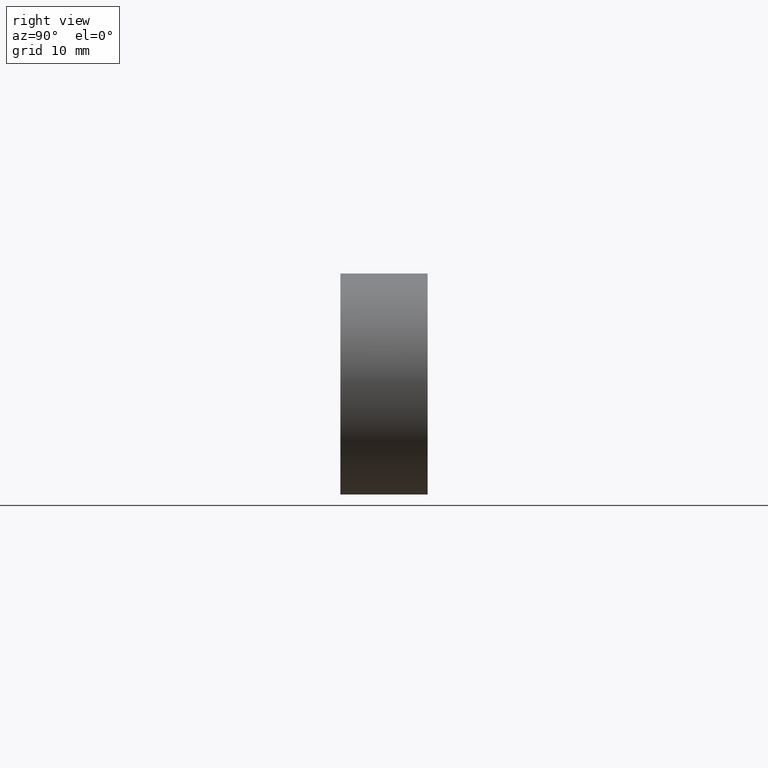
[diagram: clean part render]
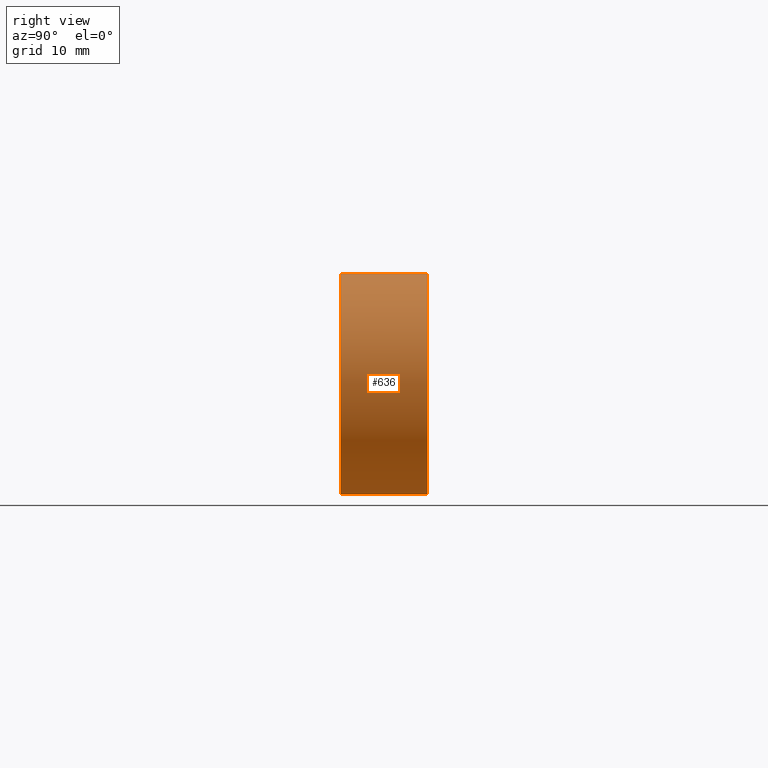
[diagram: same view with one face highlighted and labeled with its STEP entity id]
A machine part, right view. The second image highlights one B-rep face of the part: STEP entity #636.
In plain terms, the highlighted cylindrical surface (partial cylindrical patch) has radius 9.5 mm, axis along (-0, -1, -0).
Its self-contained STEP definition (entity closure, byte-faithful):
#4 = CARTESIAN_POINT ( 'NONE',  ( 0.0000000000000000000, 0.0000000000000000000, 9.500000000000000000 ) ) ;
#23 = FACE_OUTER_BOUND ( 'NONE', #430, .T. ) ;
#28 = CARTESIAN_POINT ( 'NONE',  ( 0.0000000000000000000, 0.0000000000000000000, 0.0000000000000000000 ) ) ;
#35 = CARTESIAN_POINT ( 'NONE',  ( 0.0000000000000000000, 7.500000000000000000, -9.500000000000000000 ) ) ;
#43 = VERTEX_POINT ( 'NONE', #568 ) ;
#50 = CARTESIAN_POINT ( 'NONE',  ( 0.0000000000000000000, 7.500000000000000000, 9.500000000000000000 ) ) ;
#93 = DIRECTION ( 'NONE',  ( 0.0000000000000000000, 0.0000000000000000000, -1.000000000000000000 ) ) ;
#125 = DIRECTION ( 'NONE',  ( 0.0000000000000000000, 1.000000000000000000, 0.0000000000000000000 ) ) ;
#176 = EDGE_CURVE ( 'NONE', #361, #43, #254, .T. ) ;
#180 = DIRECTION ( 'NONE',  ( 0.0000000000000000000, 0.0000000000000000000, 1.000000000000000000 ) ) ;
#188 = AXIS2_PLACEMENT_3D ( 'NONE', #247, #659, #448 ) ;
#191 = EDGE_CURVE ( 'NONE', #560, #619, #336, .T. ) ;
#195 = LINE ( 'NONE', #250, #396 ) ;
#204 = CARTESIAN_POINT ( 'NONE',  ( 0.0000000000000000000, 7.500000000000000000, 0.0000000000000000000 ) ) ;
#247 = CARTESIAN_POINT ( 'NONE',  ( 0.0000000000000000000, 7.500000000000000000, 0.0000000000000000000 ) ) ;
#250 = CARTESIAN_POINT ( 'NONE',  ( 0.0000000000000000000, 7.500000000000000000, -9.500000000000000000 ) ) ;
#254 = CIRCLE ( 'NONE', #538, 9.500000000000000000 ) ;
#303 = DIRECTION ( 'NONE',  ( -0.0000000000000000000, -1.000000000000000000, -0.0000000000000000000 ) ) ;
#316 = ORIENTED_EDGE ( 'NONE', *, *, #176, .T. ) ;
#327 = LINE ( 'NONE', #50, #605 ) ;
#334 = EDGE_CURVE ( 'NONE', #619, #43, #195, .T. ) ;
#335 = CYLINDRICAL_SURFACE ( 'NONE', #479, 9.500000000000000000 ) ;
#336 = CIRCLE ( 'NONE', #188, 9.500000000000000000 ) ;
#361 = VERTEX_POINT ( 'NONE', #4 ) ;
#396 = VECTOR ( 'NONE', #656, 1000.000000000000000 ) ;
#421 = ORIENTED_EDGE ( 'NONE', *, *, #542, .T. ) ;
#430 = EDGE_LOOP ( 'NONE', ( #316, #494, #453, #421 ) ) ;
#448 = DIRECTION ( 'NONE',  ( 0.0000000000000000000, 0.0000000000000000000, 1.000000000000000000 ) ) ;
#452 = CARTESIAN_POINT ( 'NONE',  ( 0.0000000000000000000, 7.500000000000000000, 9.500000000000000000 ) ) ;
#453 = ORIENTED_EDGE ( 'NONE', *, *, #191, .F. ) ;
#479 = AXIS2_PLACEMENT_3D ( 'NONE', #204, #303, #93 ) ;
#494 = ORIENTED_EDGE ( 'NONE', *, *, #334, .F. ) ;
#538 = AXIS2_PLACEMENT_3D ( 'NONE', #28, #125, #180 ) ;
#542 = EDGE_CURVE ( 'NONE', #560, #361, #327, .T. ) ;
#560 = VERTEX_POINT ( 'NONE', #452 ) ;
#568 = CARTESIAN_POINT ( 'NONE',  ( 0.0000000000000000000, 0.0000000000000000000, -9.500000000000000000 ) ) ;
#598 = DIRECTION ( 'NONE',  ( -0.0000000000000000000, -1.000000000000000000, -0.0000000000000000000 ) ) ;
#605 = VECTOR ( 'NONE', #598, 1000.000000000000000 ) ;
#619 = VERTEX_POINT ( 'NONE', #35 ) ;
#636 = ADVANCED_FACE ( 'NONE', ( #23 ), #335, .T. ) ;
#656 = DIRECTION ( 'NONE',  ( -0.0000000000000000000, -1.000000000000000000, -0.0000000000000000000 ) ) ;
#659 = DIRECTION ( 'NONE',  ( 0.0000000000000000000, 1.000000000000000000, 0.0000000000000000000 ) ) ;